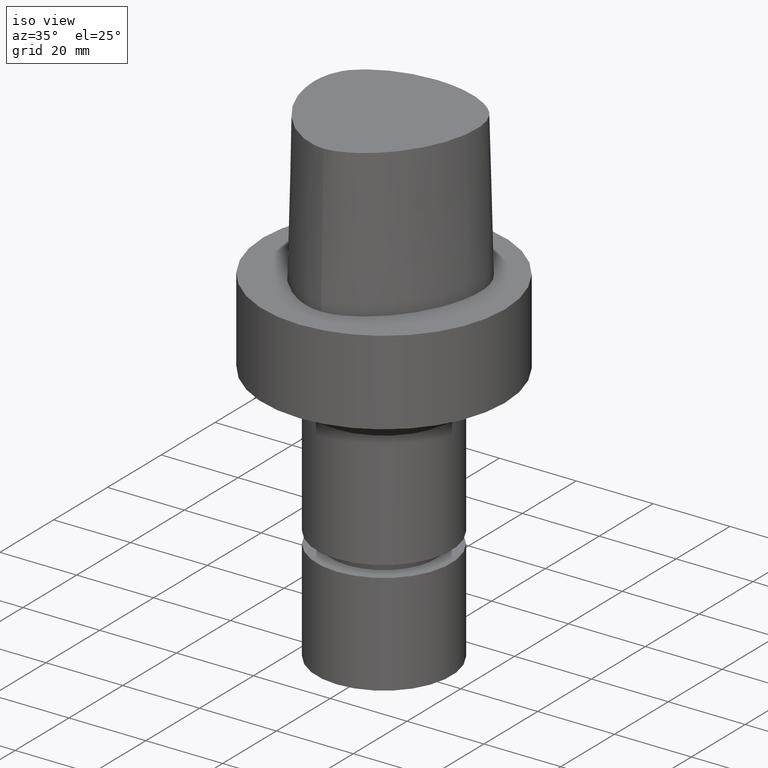
[diagram: clean part render]
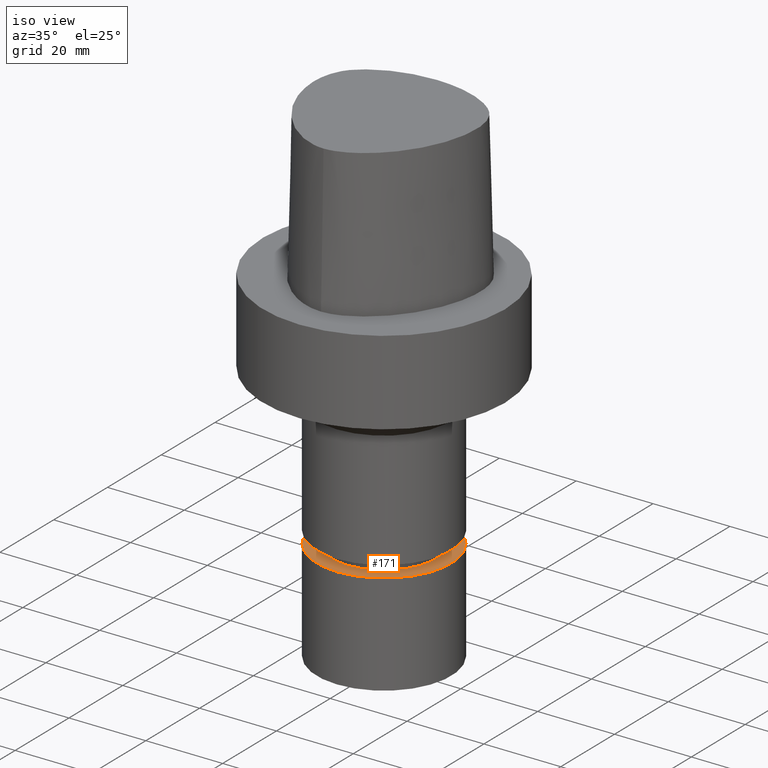
[diagram: same view with one face highlighted and labeled with its STEP entity id]
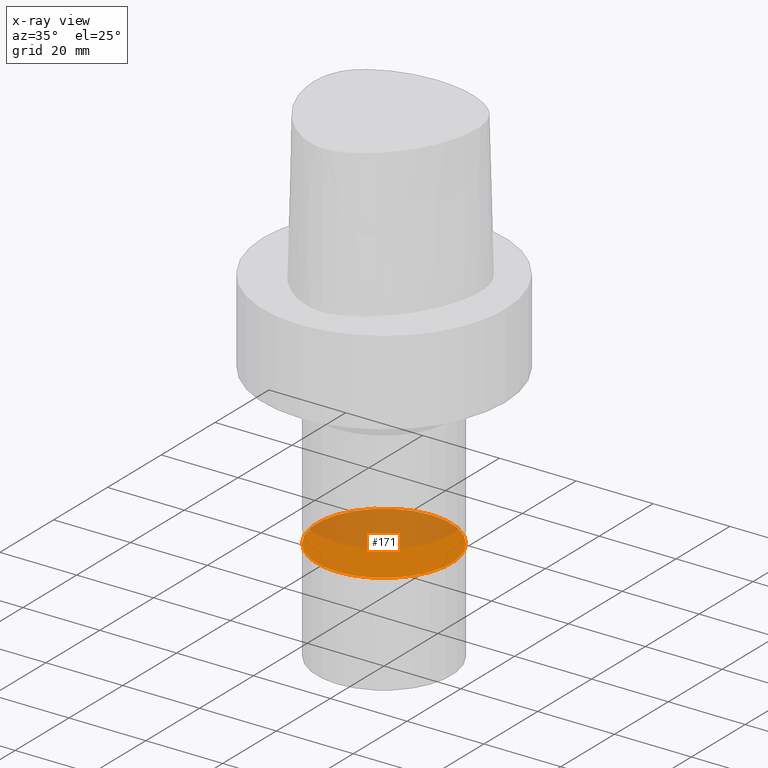
[diagram: x-ray of the same camera — body ghosted, the highlighted face saturated]
A machine part, iso view. The second image highlights one B-rep face of the part: STEP entity #171.
The next image is the same camera in x-ray: the body ghosted, the highlighted face saturated — about 48% of this face is hidden behind the body in this view.
In plain terms, the highlighted planar face has unit normal (-0, -0, 1).
Its self-contained STEP definition (entity closure, byte-faithful):
#78=EDGE_CURVE('Unnamed[1]',#200,#200,#201,.T.);
#171=ADVANCED_FACE('Unnamed[1]',(#335),#336,.T.);
#200=VERTEX_POINT('',#360);
#201=CIRCLE('',#361,17.5);
#335=FACE_OUTER_BOUND('',#734,.T.);
#336=PLANE('',#735);
#360=CARTESIAN_POINT('',(3.88825452162421E-015,17.5,-63.5000152587891));
#361=AXIS2_PLACEMENT_3D('',#746,#747,#748);
#734=EDGE_LOOP('',(#883));
#735=AXIS2_PLACEMENT_3D('',#884,#885,#886);
#746=CARTESIAN_POINT('',(3.88825452162421E-015,7.77650904324841E-015,-63.5000152587891));
#747=DIRECTION('',(6.12323399573677E-017,1.22464679914735E-016,-1.0));
#748=DIRECTION('',(-1.23259516440783E-032,1.0,1.22464679914735E-016));
#883=ORIENTED_EDGE('',*,*,#78,.F.);
#884=CARTESIAN_POINT('',(3.88825452162421E-015,8.75000000000001,-63.5000152587891));
#885=DIRECTION('',(-6.12323399573677E-017,-1.22464679914735E-016,1.0));
#886=DIRECTION('',(1.23259516440783E-032,-1.0,-1.22464679914735E-016));